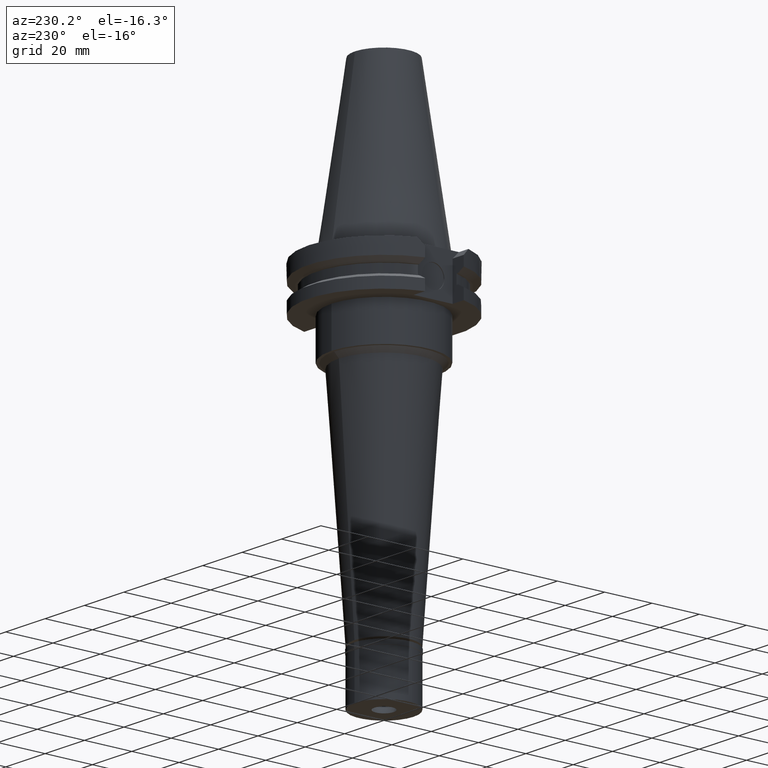
[diagram: clean part render]
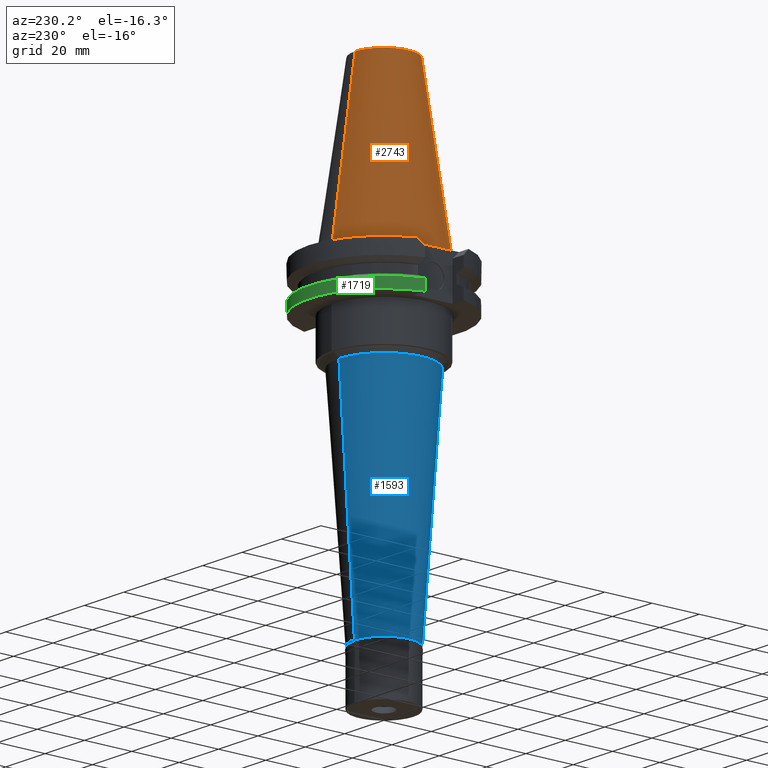
[diagram: same view with three faces highlighted in distinct colors, each labeled with its STEP entity id]
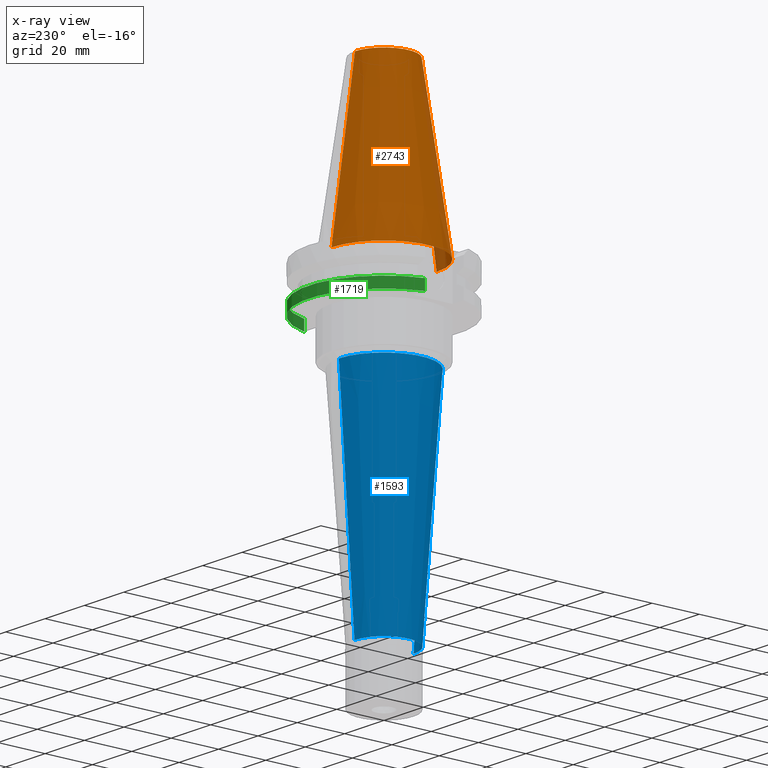
[diagram: x-ray of the same camera — body ghosted, the three highlighted faces saturated]
A machine part, auxiliary view with three faces highlighted in distinct colors.
The next image is the same camera in x-ray (body ghosted, the three faces saturated) — at least one of them is partly hidden behind the body in this view.
Their STEP definitions:

[orange] entity #2743 — the highlighted conical surface has half-angle 8.297 deg.
#105 = VERTEX_POINT ( 'NONE', #1947 ) ;
#111 = FACE_OUTER_BOUND ( 'NONE', #1886, .T. ) ;
#124 = CIRCLE ( 'NONE', #2034, 12.27186888070000137 ) ;
#135 = CIRCLE ( 'NONE', #2272, 22.22500000000000142 ) ;
#173 = LINE ( 'NONE', #3081, #459 ) ;
#368 = DIRECTION ( 'NONE',  ( 0.0000000000000000000, -1.000000000000000000, 0.0000000000000000000 ) ) ;
#369 = ORIENTED_EDGE ( 'NONE', *, *, #2231, .F. ) ;
#399 = DIRECTION ( 'NONE',  ( 0.0000000000000000000, 0.0000000000000000000, -1.000000000000000000 ) ) ;
#414 = CARTESIAN_POINT ( 'NONE',  ( 0.0000000000000000000, -12.27186888070000137, 68.25000000000000000 ) ) ;
#459 = VECTOR ( 'NONE', #739, 1000.000000000000114 ) ;
#497 = EDGE_CURVE ( 'NONE', #3106, #2186, #124, .T. ) ;
#561 = DIRECTION ( 'NONE',  ( 0.0000000000000000000, -0.1443069799456937474, -0.9895329683941577192 ) ) ;
#600 = VERTEX_POINT ( 'NONE', #907 ) ;
#643 = DIRECTION ( 'NONE',  ( 0.0000000000000000000, -1.000000000000000000, 0.0000000000000000000 ) ) ;
#739 = DIRECTION ( 'NONE',  ( 0.0000000000000000000, 0.1443069799456937474, -0.9895329683941577192 ) ) ;
#757 = CARTESIAN_POINT ( 'NONE',  ( 0.0000000000000000000, 12.27186888070000137, 68.25000000000000000 ) ) ;
#843 = ORIENTED_EDGE ( 'NONE', *, *, #3052, .T. ) ;
#888 = DIRECTION ( 'NONE',  ( 0.0000000000000000000, -1.000000000000000000, 0.0000000000000000000 ) ) ;
#907 = CARTESIAN_POINT ( 'NONE',  ( 0.0000000000000000000, 22.22500000000000142, -2.344791028008000428E-13 ) ) ;
#922 = DIRECTION ( 'NONE',  ( 0.0000000000000000000, 0.0000000000000000000, -1.000000000000000000 ) ) ;
#1200 = CARTESIAN_POINT ( 'NONE',  ( 0.0000000000000000000, 1.642557519355999895E-14, 68.25000000000000000 ) ) ;
#1389 = EDGE_CURVE ( 'NONE', #3106, #105, #2128, .T. ) ;
#1436 = DIRECTION ( 'NONE',  ( 0.0000000000000000000, 0.0000000000000000000, -1.000000000000000000 ) ) ;
#1774 = AXIS2_PLACEMENT_3D ( 'NONE', #2198, #922, #368 ) ;
#1886 = EDGE_LOOP ( 'NONE', ( #369, #3025, #2906, #843 ) ) ;
#1947 = CARTESIAN_POINT ( 'NONE',  ( 0.0000000000000000000, -22.22500000000000142, -2.344791028008000428E-13 ) ) ;
#2034 = AXIS2_PLACEMENT_3D ( 'NONE', #1200, #399, #888 ) ;
#2128 = LINE ( 'NONE', #2911, #2975 ) ;
#2186 = VERTEX_POINT ( 'NONE', #757 ) ;
#2198 = CARTESIAN_POINT ( 'NONE',  ( 0.0000000000000000000, 1.642557519355999895E-14, 34.12500000000000000 ) ) ;
#2224 = CARTESIAN_POINT ( 'NONE',  ( 0.0000000000000000000, 1.642557519355999895E-14, -3.126388037344000570E-13 ) ) ;
#2231 = EDGE_CURVE ( 'NONE', #105, #600, #135, .T. ) ;
#2272 = AXIS2_PLACEMENT_3D ( 'NONE', #2224, #1436, #643 ) ;
#2743 = ADVANCED_FACE ( 'NONE', ( #111 ), #3242, .T. ) ;
#2906 = ORIENTED_EDGE ( 'NONE', *, *, #497, .T. ) ;
#2911 = CARTESIAN_POINT ( 'NONE',  ( 0.0000000000000000000, -12.27186888070000137, 68.25000000000000000 ) ) ;
#2975 = VECTOR ( 'NONE', #561, 1000.000000000000114 ) ;
#3025 = ORIENTED_EDGE ( 'NONE', *, *, #1389, .F. ) ;
#3052 = EDGE_CURVE ( 'NONE', #2186, #600, #173, .T. ) ;
#3081 = CARTESIAN_POINT ( 'NONE',  ( 0.0000000000000000000, 12.27186888070000137, 68.25000000000000000 ) ) ;
#3106 = VERTEX_POINT ( 'NONE', #414 ) ;
#3242 = CONICAL_SURFACE ( 'NONE', #1774, 17.24843444035000317, 0.1448125860318199565 ) ;

[blue] entity #1593 — the highlighted conical surface has half-angle 4 deg.
#60 = ORIENTED_EDGE ( 'NONE', *, *, #127, .T. ) ;
#72 = EDGE_LOOP ( 'NONE', ( #60, #1134, #2382, #945 ) ) ;
#104 = CARTESIAN_POINT ( 'NONE',  ( 0.0000000000000000000, 19.08011300388000109, -37.00000000000000000 ) ) ;
#127 = EDGE_CURVE ( 'NONE', #2677, #2886, #2059, .T. ) ;
#180 = DIRECTION ( 'NONE',  ( 0.0000000000000000000, 1.000000000000000000, 0.0000000000000000000 ) ) ;
#322 = CARTESIAN_POINT ( 'NONE',  ( 0.0000000000000000000, 12.50000000000000000, -131.0999999999999943 ) ) ;
#439 = DIRECTION ( 'NONE',  ( 0.0000000000000000000, 0.06975647374411170221, -0.9975640502598251969 ) ) ;
#511 = CONICAL_SURFACE ( 'NONE', #2159, 15.79005650194000054, 0.06981317007975955391 ) ;
#665 = DIRECTION ( 'NONE',  ( 0.0000000000000000000, 0.0000000000000000000, -1.000000000000000000 ) ) ;
#847 = CIRCLE ( 'NONE', #1561, 19.08011300388000109 ) ;
#866 = EDGE_CURVE ( 'NONE', #1418, #2677, #1778, .T. ) ;
#945 = ORIENTED_EDGE ( 'NONE', *, *, #866, .T. ) ;
#1134 = ORIENTED_EDGE ( 'NONE', *, *, #2023, .F. ) ;
#1248 = AXIS2_PLACEMENT_3D ( 'NONE', #3361, #1309, #1754 ) ;
#1309 = DIRECTION ( 'NONE',  ( 0.0000000000000000000, 0.0000000000000000000, 1.000000000000000000 ) ) ;
#1418 = VERTEX_POINT ( 'NONE', #104 ) ;
#1457 = DIRECTION ( 'NONE',  ( 0.0000000000000000000, 0.0000000000000000000, 1.000000000000000000 ) ) ;
#1531 = LINE ( 'NONE', #1713, #2811 ) ;
#1561 = AXIS2_PLACEMENT_3D ( 'NONE', #1760, #665, #2019 ) ;
#1593 = ADVANCED_FACE ( 'NONE', ( #1740 ), #511, .T. ) ;
#1713 = CARTESIAN_POINT ( 'NONE',  ( 0.0000000000000000000, -19.08011300388000109, -37.00000000000000000 ) ) ;
#1740 = FACE_OUTER_BOUND ( 'NONE', #72, .T. ) ;
#1754 = DIRECTION ( 'NONE',  ( 0.0000000000000000000, 1.000000000000000000, 0.0000000000000000000 ) ) ;
#1760 = CARTESIAN_POINT ( 'NONE',  ( 0.0000000000000000000, 0.0000000000000000000, -37.00000000000000000 ) ) ;
#1778 = LINE ( 'NONE', #2299, #2482 ) ;
#1833 = DIRECTION ( 'NONE',  ( 0.0000000000000000000, -0.06975647374411170221, -0.9975640502598251969 ) ) ;
#2019 = DIRECTION ( 'NONE',  ( 0.0000000000000000000, -1.000000000000000000, 0.0000000000000000000 ) ) ;
#2023 = EDGE_CURVE ( 'NONE', #3102, #2886, #1531, .T. ) ;
#2059 = CIRCLE ( 'NONE', #1248, 12.50000000000000000 ) ;
#2076 = EDGE_CURVE ( 'NONE', #3102, #1418, #847, .T. ) ;
#2159 = AXIS2_PLACEMENT_3D ( 'NONE', #2527, #1457, #180 ) ;
#2217 = CARTESIAN_POINT ( 'NONE',  ( 0.0000000000000000000, -12.50000000000000000, -131.0999999999999943 ) ) ;
#2299 = CARTESIAN_POINT ( 'NONE',  ( 0.0000000000000000000, 19.08011300388000109, -37.00000000000000000 ) ) ;
#2382 = ORIENTED_EDGE ( 'NONE', *, *, #2076, .T. ) ;
#2482 = VECTOR ( 'NONE', #1833, 1000.000000000000114 ) ;
#2527 = CARTESIAN_POINT ( 'NONE',  ( 0.0000000000000000000, 0.0000000000000000000, -84.04999999999999716 ) ) ;
#2677 = VERTEX_POINT ( 'NONE', #322 ) ;
#2763 = CARTESIAN_POINT ( 'NONE',  ( 0.0000000000000000000, -19.08011300388000109, -37.00000000000000000 ) ) ;
#2811 = VECTOR ( 'NONE', #439, 1000.000000000000114 ) ;
#2886 = VERTEX_POINT ( 'NONE', #2217 ) ;
#3102 = VERTEX_POINT ( 'NONE', #2763 ) ;
#3361 = CARTESIAN_POINT ( 'NONE',  ( 0.0000000000000000000, 0.0000000000000000000, -131.0999999999999943 ) ) ;

[green] entity #1719 — the highlighted cylindrical surface (partial cylindrical patch) has radius 31.75 mm, axis along (0, 0, -1).
#208 = VERTEX_POINT ( 'NONE', #2314 ) ;
#245 = AXIS2_PLACEMENT_3D ( 'NONE', #258, #2296, #1558 ) ;
#258 = CARTESIAN_POINT ( 'NONE',  ( 0.0000000000000000000, 2.191780992603999821E-14, 78.97249999999999659 ) ) ;
#294 = EDGE_CURVE ( 'NONE', #2077, #1734, #1945, .T. ) ;
#506 = CYLINDRICAL_SURFACE ( 'NONE', #245, 31.75000000000000000 ) ;
#627 = EDGE_CURVE ( 'NONE', #2077, #1936, #1537, .T. ) ;
#842 = AXIS2_PLACEMENT_3D ( 'NONE', #1948, #1475, #2804 ) ;
#966 = CARTESIAN_POINT ( 'NONE',  ( 30.67550162588999640, 8.189999999999999503, -19.05000000000000071 ) ) ;
#973 = EDGE_CURVE ( 'NONE', #208, #1936, #2320, .T. ) ;
#1010 = FACE_OUTER_BOUND ( 'NONE', #2791, .T. ) ;
#1195 = CARTESIAN_POINT ( 'NONE',  ( 30.67550165918000005, 8.189999875310000732, -14.65183552780999854 ) ) ;
#1283 = CARTESIAN_POINT ( 'NONE',  ( -30.67550146538999911, 8.190000601150000392, -14.65184201408000142 ) ) ;
#1321 = CARTESIAN_POINT ( 'NONE',  ( -30.67550162588999640, 8.189999999999999503, -19.05000000000000071 ) ) ;
#1345 = VECTOR ( 'NONE', #3303, 1000.000000000000000 ) ;
#1393 = ORIENTED_EDGE ( 'NONE', *, *, #2454, .F. ) ;
#1475 = DIRECTION ( 'NONE',  ( 0.0000000000000000000, 0.0000000000000000000, -1.000000000000000000 ) ) ;
#1537 = LINE ( 'NONE', #2580, #2480 ) ;
#1558 = DIRECTION ( 'NONE',  ( 0.0000000000000000000, -1.000000000000000000, 0.0000000000000000000 ) ) ;
#1608 = DIRECTION ( 'NONE',  ( 0.0000000000000000000, 0.0000000000000000000, 1.000000000000000000 ) ) ;
#1719 = ADVANCED_FACE ( 'NONE', ( #1010 ), #506, .T. ) ;
#1734 = VERTEX_POINT ( 'NONE', #1321 ) ;
#1784 = AXIS2_PLACEMENT_3D ( 'NONE', #2654, #1608, #1864 ) ;
#1787 = ORIENTED_EDGE ( 'NONE', *, *, #973, .T. ) ;
#1789 = DIRECTION ( 'NONE',  ( 7.569381695186995734E-09, -2.835049563149999220E-08, 0.9999999999999996669 ) ) ;
#1864 = DIRECTION ( 'NONE',  ( 0.0000000000000000000, 1.000000000000000000, 0.0000000000000000000 ) ) ;
#1936 = VERTEX_POINT ( 'NONE', #1195 ) ;
#1945 = CIRCLE ( 'NONE', #1784, 31.75000000000000000 ) ;
#1948 = CARTESIAN_POINT ( 'NONE',  ( 0.0000000000000000000, 1.055021971275999843E-14, -14.65183664206000103 ) ) ;
#2077 = VERTEX_POINT ( 'NONE', #966 ) ;
#2143 = ORIENTED_EDGE ( 'NONE', *, *, #294, .T. ) ;
#2296 = DIRECTION ( 'NONE',  ( 0.0000000000000000000, 0.0000000000000000000, -1.000000000000000000 ) ) ;
#2314 = CARTESIAN_POINT ( 'NONE',  ( -30.67550162588999640, 8.190000000000997815, -14.65183664206000103 ) ) ;
#2320 = CIRCLE ( 'NONE', #842, 31.74999999999998579 ) ;
#2454 = EDGE_CURVE ( 'NONE', #208, #1734, #2838, .T. ) ;
#2480 = VECTOR ( 'NONE', #1789, 999.9999999999998863 ) ;
#2580 = CARTESIAN_POINT ( 'NONE',  ( 30.67550162588999640, 8.189999999999999503, -19.05000000000000071 ) ) ;
#2615 = ORIENTED_EDGE ( 'NONE', *, *, #627, .F. ) ;
#2654 = CARTESIAN_POINT ( 'NONE',  ( 0.0000000000000000000, 2.191780992603999821E-14, -19.05000000000000071 ) ) ;
#2791 = EDGE_LOOP ( 'NONE', ( #2615, #2143, #1393, #1787 ) ) ;
#2804 = DIRECTION ( 'NONE',  ( -0.9661575315241073270, 0.2579527559055020958, 0.0000000000000000000 ) ) ;
#2838 = LINE ( 'NONE', #1283, #1345 ) ;
#3303 = DIRECTION ( 'NONE',  ( -3.649241928543928836E-08, -1.366822098825972366E-07, -0.9999999999999900080 ) ) ;